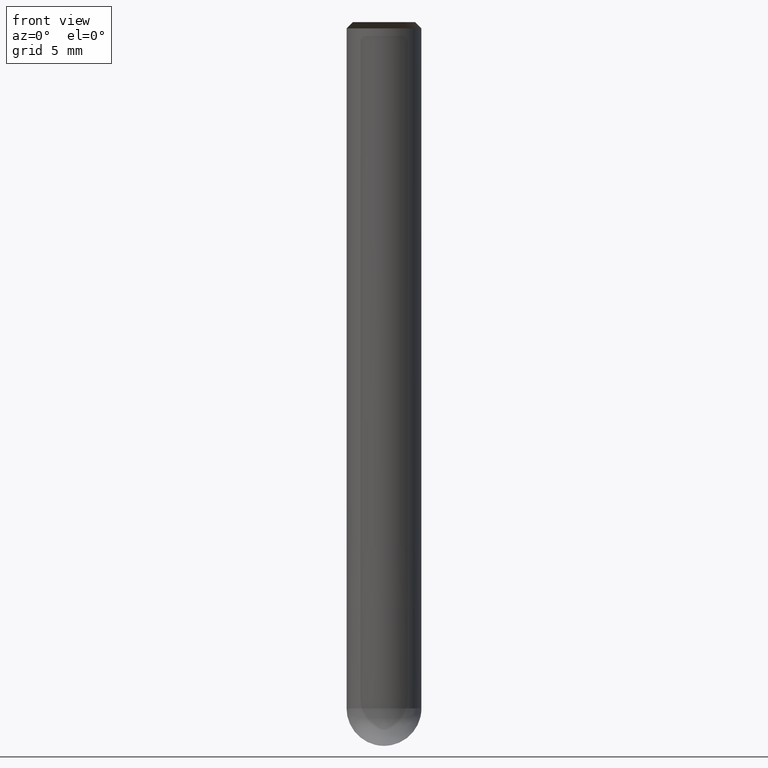
[diagram: clean part render]
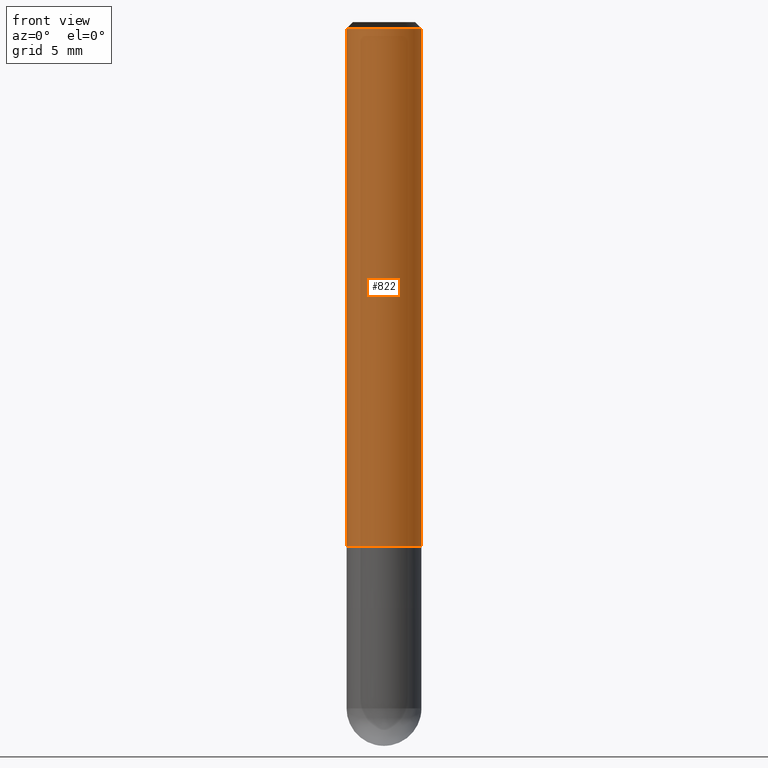
[diagram: same view with one face highlighted and labeled with its STEP entity id]
A machine part, front view. The second image highlights one B-rep face of the part: STEP entity #822.
In plain terms, the highlighted face is a freeform B-spline surface patch.
Its self-contained STEP definition (entity closure, byte-faithful):
#536=CARTESIAN_POINT('',(3.0,0.0,0.0));
#540=CARTESIAN_POINT('',(-3.0,0.0,0.0));
#541=CARTESIAN_POINT('',(3.0,0.0,41.5));
#545=CARTESIAN_POINT('',(-3.0,0.0,41.5));
#552=CARTESIAN_POINT('',(-3.0,-3.0,0.0));
#553=CARTESIAN_POINT('',(0.0,-3.0,0.0));
#554=CARTESIAN_POINT('',(3.0,-3.0,0.0));
#555=CARTESIAN_POINT('',(-3.0,-3.0,41.5));
#556=CARTESIAN_POINT('',(0.0,-3.0,41.5));
#557=CARTESIAN_POINT('',(3.0,-3.0,41.5));
#803=(
BOUNDED_SURFACE()
B_SPLINE_SURFACE(1,2,(
(#540,#552,#553,#554,#536),
(#545,#555,#556,#557,#541)
), .UNSPECIFIED.,.F.,.F.,.F.)
B_SPLINE_SURFACE_WITH_KNOTS((2,2),(3,2,3),(
0.0,1.0),(
0.0,0.5,1.0), .UNSPECIFIED.)
GEOMETRIC_REPRESENTATION_ITEM()
RATIONAL_B_SPLINE_SURFACE(((1.0,0.707106781187,1.0,0.707106781187,1.0),
(1.0,0.707106781187,1.0,0.707106781187,1.0)
))
REPRESENTATION_ITEM('')
SURFACE()
);
#804=(
BOUNDED_CURVE()
B_SPLINE_CURVE(2,(#536,#554,#553,#552,#540),.UNSPECIFIED.,.F.,.F.)
B_SPLINE_CURVE_WITH_KNOTS((3,2,3),
(0.0,0.5,1.0),.UNSPECIFIED.)
CURVE()
GEOMETRIC_REPRESENTATION_ITEM()
RATIONAL_B_SPLINE_CURVE((1.0,0.707106781187,1.0,0.707106781187,1.0))
REPRESENTATION_ITEM('')
);
#805=(
BOUNDED_CURVE()
B_SPLINE_CURVE(1,(#540,#545),.UNSPECIFIED.,.F.,.F.)
B_SPLINE_CURVE_WITH_KNOTS((2,2),
(0.0,1.0),.UNSPECIFIED.)
CURVE()
GEOMETRIC_REPRESENTATION_ITEM()
RATIONAL_B_SPLINE_CURVE((1.0,1.0))
REPRESENTATION_ITEM('')
);
#806=(
BOUNDED_CURVE()
B_SPLINE_CURVE(2,(#545,#555,#556,#557,#541),.UNSPECIFIED.,.F.,.F.)
B_SPLINE_CURVE_WITH_KNOTS((3,2,3),
(0.0,0.5,1.0),.UNSPECIFIED.)
CURVE()
GEOMETRIC_REPRESENTATION_ITEM()
RATIONAL_B_SPLINE_CURVE((1.0,0.707106781187,1.0,0.707106781187,1.0))
REPRESENTATION_ITEM('')
);
#807=(
BOUNDED_CURVE()
B_SPLINE_CURVE(1,(#541,#536),.UNSPECIFIED.,.F.,.F.)
B_SPLINE_CURVE_WITH_KNOTS((2,2),
(0.0,1.0),.UNSPECIFIED.)
CURVE()
GEOMETRIC_REPRESENTATION_ITEM()
RATIONAL_B_SPLINE_CURVE((1.0,1.0))
REPRESENTATION_ITEM('')
);
#808=VERTEX_POINT('',#536);
#809=VERTEX_POINT('',#540);
#810=VERTEX_POINT('',#541);
#811=VERTEX_POINT('',#545);
#812=EDGE_CURVE('',#808,#809,#804,.T.);
#813=EDGE_CURVE('',#809,#811,#805,.T.);
#814=EDGE_CURVE('',#811,#810,#806,.T.);
#815=EDGE_CURVE('',#810,#808,#807,.T.);
#816=ORIENTED_EDGE('',*,*,#812,.T.);
#817=ORIENTED_EDGE('',*,*,#813,.T.);
#818=ORIENTED_EDGE('',*,*,#814,.T.);
#819=ORIENTED_EDGE('',*,*,#815,.T.);
#820=EDGE_LOOP('',(#816,#817,#818,#819));
#821=FACE_OUTER_BOUND('',#820,.T.);
#822=ADVANCED_FACE('',(#821),#803,.T.);